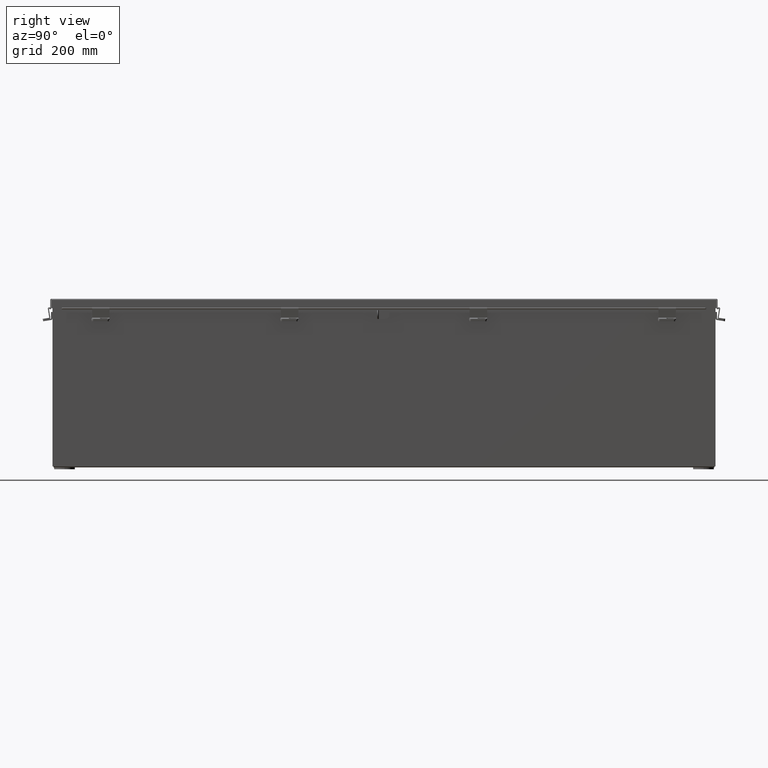
[diagram: clean part render]
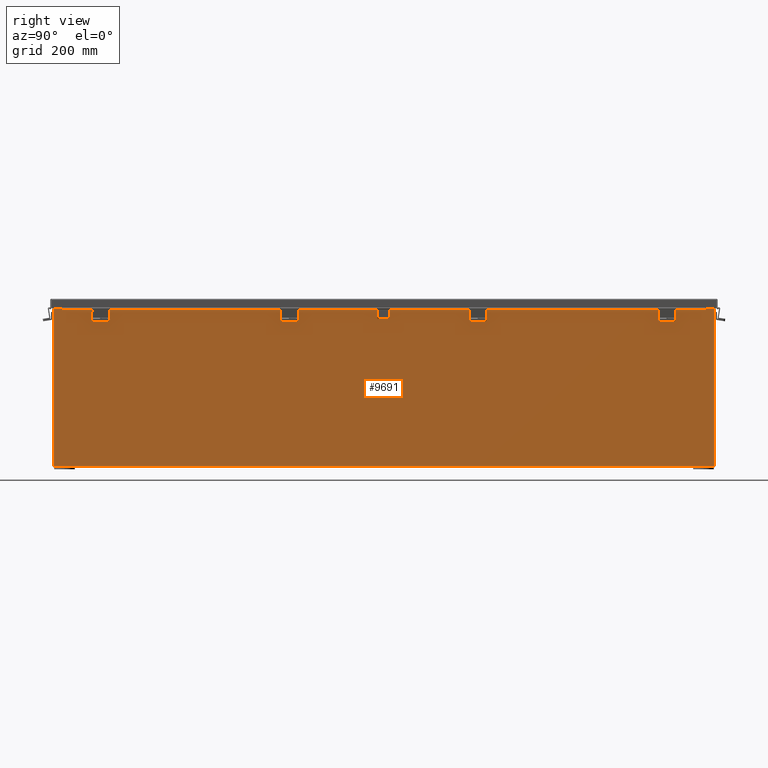
[diagram: same view with one face highlighted and labeled with its STEP entity id]
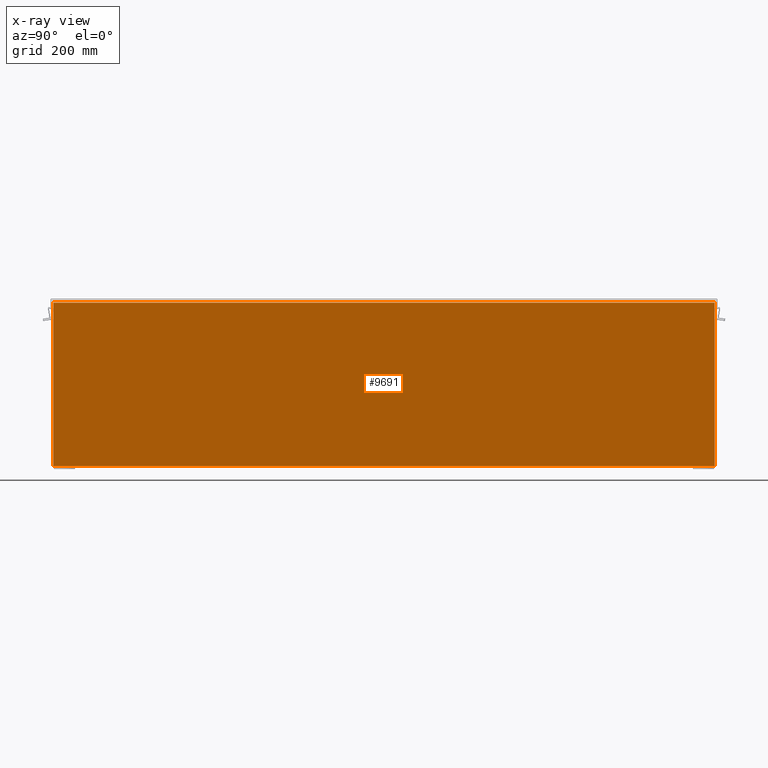
[diagram: x-ray of the same camera — body ghosted, the highlighted face saturated]
A machine part, right view. The second image highlights one B-rep face of the part: STEP entity #9691.
The next image is the same camera in x-ray: the body ghosted, the highlighted face saturated — about 0% of this face is hidden behind the body in this view.
In plain terms, the highlighted planar face has unit normal (-1, 0, 0).
Its self-contained STEP definition (entity closure, byte-faithful):
#941 = FACE_OUTER_BOUND ( 'NONE', #8838, .T. ) ;
#3367 = CARTESIAN_POINT ( 'NONE',  ( 6.000000000000040000, 23.92529999999998900, 11.83759999999999800 ) ) ;
#4388 = DIRECTION ( 'NONE',  ( -3.503965158194252100E-015, 0.0000000000000000000, -1.000000000000000000 ) ) ;
#4417 = VERTEX_POINT ( 'NONE', #36143 ) ;
#4956 = DIRECTION ( 'NONE',  ( 3.503965158194251300E-015, 0.0000000000000000000, 1.000000000000000000 ) ) ;
#5553 = VECTOR ( 'NONE', #25032, 39.37007874015748100 ) ;
#6791 = CARTESIAN_POINT ( 'NONE',  ( 5.999999999999998200, 23.92529999999998600, 0.01299999999999875000 ) ) ;
#7015 = VERTEX_POINT ( 'NONE', #29072 ) ;
#7990 = EDGE_CURVE ( 'NONE', #16903, #20512, #13049, .T. ) ;
#8838 = EDGE_LOOP ( 'NONE', ( #9710, #34865, #29986, #20871 ) ) ;
#8972 = EDGE_CURVE ( 'NONE', #20512, #7015, #31539, .T. ) ;
#9022 = VECTOR ( 'NONE', #20311, 39.37007874015748100 ) ;
#9656 = AXIS2_PLACEMENT_3D ( 'NONE', #33147, #21890, #4956 ) ;
#9691 = ADVANCED_FACE ( 'NONE', ( #941 ), #16199, .F. ) ;
#9710 = ORIENTED_EDGE ( 'NONE', *, *, #8972, .T. ) ;
#11863 = VECTOR ( 'NONE', #26181, 39.37007874015748100 ) ;
#13049 = LINE ( 'NONE', #19352, #5553 ) ;
#15654 = CARTESIAN_POINT ( 'NONE',  ( 5.999999999999998200, -23.92529999999998900, -2.128280327564064900E-014 ) ) ;
#15852 = CARTESIAN_POINT ( 'NONE',  ( 6.000000000000040000, 23.92529999999996800, 11.83759999999999800 ) ) ;
#16199 = PLANE ( 'NONE',  #9656 ) ;
#16903 = VERTEX_POINT ( 'NONE', #6791 ) ;
#19352 = CARTESIAN_POINT ( 'NONE',  ( 5.999999999999998200, 23.92529999999999600, -1.246405647109320000E-014 ) ) ;
#19354 = LINE ( 'NONE', #26052, #11863 ) ;
#19650 = EDGE_CURVE ( 'NONE', #16903, #4417, #19354, .T. ) ;
#20311 = DIRECTION ( 'NONE',  ( -0.0000000000000000000, -1.000000000000000000, -0.0000000000000000000 ) ) ;
#20512 = VERTEX_POINT ( 'NONE', #15852 ) ;
#20871 = ORIENTED_EDGE ( 'NONE', *, *, #7990, .T. ) ;
#21890 = DIRECTION ( 'NONE',  ( -1.000000000000000000, 0.0000000000000000000, 3.503965158194251300E-015 ) ) ;
#25032 = DIRECTION ( 'NONE',  ( 3.503965158194252100E-015, -3.688384377046581100E-016, 1.000000000000000000 ) ) ;
#25870 = VECTOR ( 'NONE', #4388, 39.37007874015748100 ) ;
#26052 = CARTESIAN_POINT ( 'NONE',  ( 5.999999999999998200, -23.92529999999998900, 0.01299999999999984300 ) ) ;
#26181 = DIRECTION ( 'NONE',  ( 8.001822495251853600E-032, -1.000000000000000000, 2.283647848649142500E-017 ) ) ;
#26810 = EDGE_CURVE ( 'NONE', #7015, #4417, #33387, .T. ) ;
#29072 = CARTESIAN_POINT ( 'NONE',  ( 6.000000000000040000, -23.92529999999998900, 11.83759999999999800 ) ) ;
#29986 = ORIENTED_EDGE ( 'NONE', *, *, #19650, .F. ) ;
#31539 = LINE ( 'NONE', #3367, #9022 ) ;
#33147 = CARTESIAN_POINT ( 'NONE',  ( 5.999999999999998200, 0.0000000000000000000, -2.128280327564064900E-014 ) ) ;
#33387 = LINE ( 'NONE', #15654, #25870 ) ;
#34865 = ORIENTED_EDGE ( 'NONE', *, *, #26810, .T. ) ;
#36143 = CARTESIAN_POINT ( 'NONE',  ( 5.999999999999998200, -23.92529999999998900, 0.01299999999999929700 ) ) ;